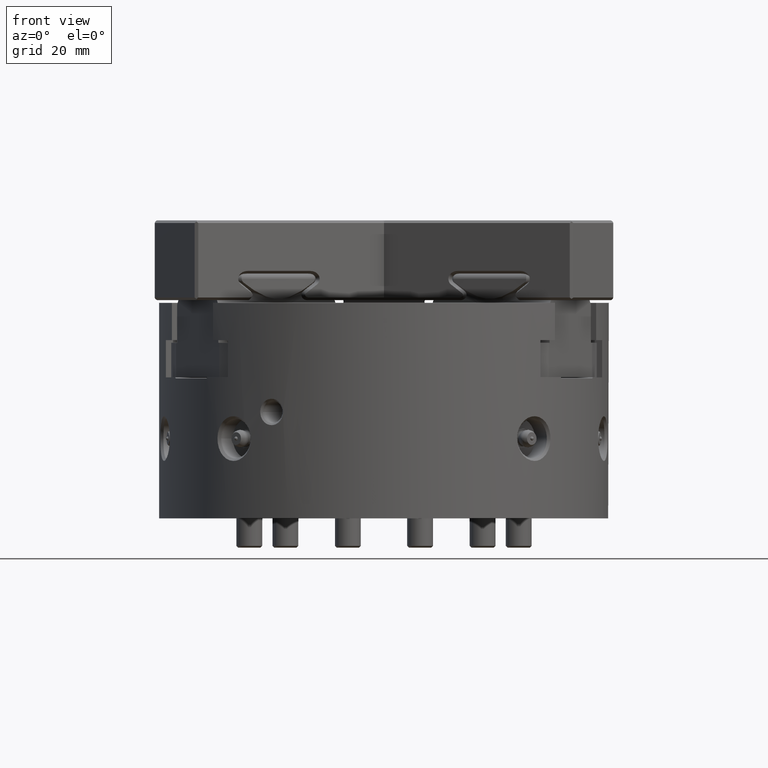
[diagram: clean part render]
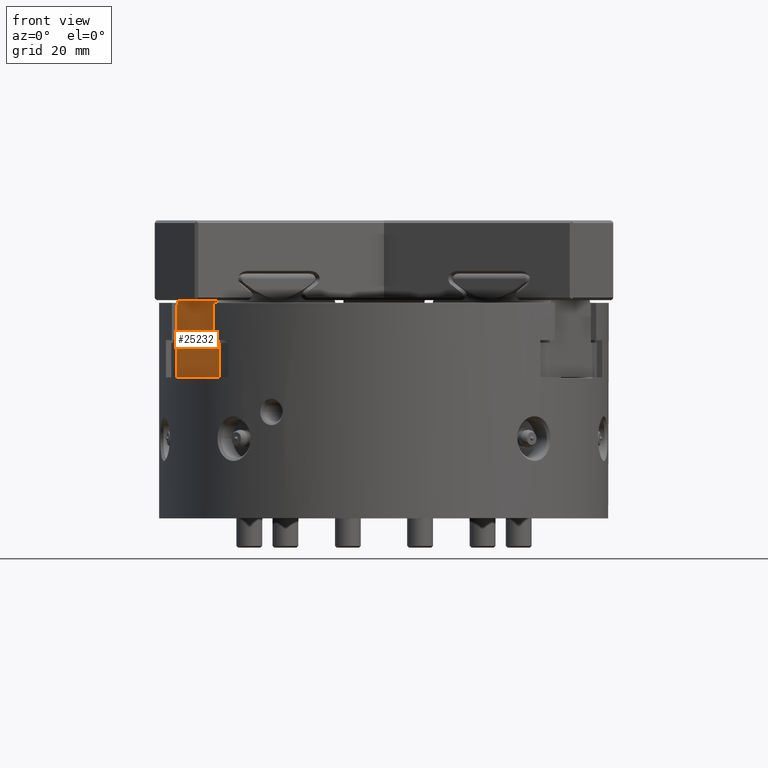
[diagram: same view with one face highlighted and labeled with its STEP entity id]
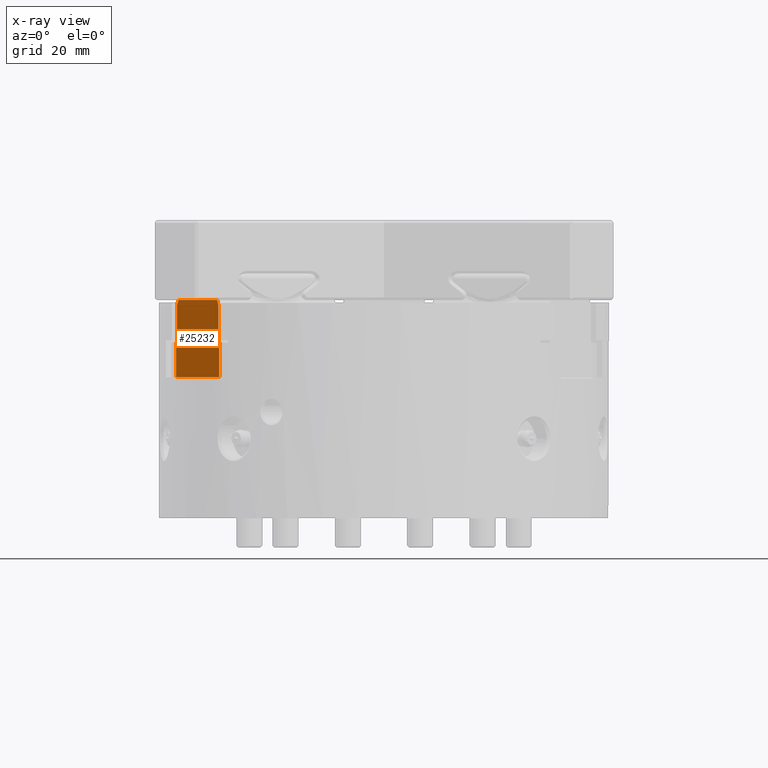
[diagram: x-ray of the same camera — body ghosted, the highlighted face saturated]
A machine part, front view. The second image highlights one B-rep face of the part: STEP entity #25232.
The next image is the same camera in x-ray: the body ghosted, the highlighted face saturated — about 0% of this face is hidden behind the body in this view.
In plain terms, the highlighted planar face has unit normal (0.866, 0.5, 0).
Its self-contained STEP definition (entity closure, byte-faithful):
#1493=LINE('',#35417,#3527);
#1508=LINE('',#35459,#3542);
#2102=LINE('',#40539,#4136);
#2104=LINE('',#40543,#4138);
#2160=LINE('',#41657,#4194);
#2771=LINE('',#45087,#4805);
#2773=LINE('',#45091,#4807);
#2779=LINE('',#45117,#4813);
#2784=LINE('',#45137,#4818);
#2785=LINE('',#45139,#4819);
#2789=LINE('',#45148,#4823);
#2801=LINE('',#45176,#4835);
#2807=LINE('',#45187,#4841);
#2819=LINE('',#45209,#4853);
#3527=VECTOR('',#28514,1000.);
#3542=VECTOR('',#28549,1000.);
#4136=VECTOR('',#29877,1000.);
#4138=VECTOR('',#29881,1000.);
#4194=VECTOR('',#30649,1000.);
#4805=VECTOR('',#32612,1000.);
#4807=VECTOR('',#32616,1000.);
#4813=VECTOR('',#32626,1000.);
#4818=VECTOR('',#32633,1000.);
#4819=VECTOR('',#32636,1000.);
#4823=VECTOR('',#32642,1000.);
#4835=VECTOR('',#32668,1000.);
#4841=VECTOR('',#32678,1000.);
#4853=VECTOR('',#32710,1000.);
#10236=ORIENTED_EDGE('',*,*,#15125,.F.);
#10237=ORIENTED_EDGE('',*,*,#15123,.F.);
#10238=ORIENTED_EDGE('',*,*,#13666,.F.);
#10239=ORIENTED_EDGE('',*,*,#15134,.F.);
#10240=ORIENTED_EDGE('',*,*,#15180,.F.);
#10241=ORIENTED_EDGE('',*,*,#15141,.F.);
#10242=ORIENTED_EDGE('',*,*,#13664,.F.);
#10243=ORIENTED_EDGE('',*,*,#15142,.F.);
#10244=ORIENTED_EDGE('',*,*,#15146,.F.);
#10245=ORIENTED_EDGE('',*,*,#15168,.F.);
#10246=ORIENTED_EDGE('',*,*,#12800,.T.);
#10247=ORIENTED_EDGE('',*,*,#14049,.T.);
#10248=ORIENTED_EDGE('',*,*,#12779,.T.);
#10249=ORIENTED_EDGE('',*,*,#15162,.T.);
#12779=EDGE_CURVE('',#16373,#16372,#1493,.T.);
#12800=EDGE_CURVE('',#16390,#16384,#1508,.T.);
#13664=EDGE_CURVE('',#17015,#17006,#2102,.T.);
#13666=EDGE_CURVE('',#17016,#17001,#2104,.T.);
#14049=EDGE_CURVE('',#16384,#16373,#2160,.T.);
#15123=EDGE_CURVE('',#17001,#17979,#2771,.T.);
#15125=EDGE_CURVE('',#17979,#17980,#2773,.T.);
#15134=EDGE_CURVE('',#17987,#17016,#2779,.T.);
#15141=EDGE_CURVE('',#17006,#17989,#2784,.T.);
#15142=EDGE_CURVE('',#17992,#17015,#2785,.T.);
#15146=EDGE_CURVE('',#17995,#17992,#2789,.T.);
#15162=EDGE_CURVE('',#16372,#17980,#2801,.T.);
#15168=EDGE_CURVE('',#16390,#17995,#2807,.T.);
#15180=EDGE_CURVE('',#17989,#17987,#2819,.T.);
#16372=VERTEX_POINT('',#35416);
#16373=VERTEX_POINT('',#35418);
#16384=VERTEX_POINT('',#35444);
#16390=VERTEX_POINT('',#35460);
#17001=VERTEX_POINT('',#40500);
#17006=VERTEX_POINT('',#40520);
#17015=VERTEX_POINT('',#40538);
#17016=VERTEX_POINT('',#40542);
#17979=VERTEX_POINT('',#45088);
#17980=VERTEX_POINT('',#45092);
#17987=VERTEX_POINT('',#45116);
#17989=VERTEX_POINT('',#45122);
#17992=VERTEX_POINT('',#45140);
#17995=VERTEX_POINT('',#45147);
#20742=EDGE_LOOP('',(#10236,#10237,#10238,#10239,#10240,#10241,#10242,#10243,
#10244,#10245,#10246,#10247,#10248,#10249));
#22672=FACE_BOUND('',#20742,.T.);
#24017=PLANE('',#27394);
#25232=ADVANCED_FACE('',(#22672),#24017,.F.);
#27394=AXIS2_PLACEMENT_3D('',#45208,#32708,#32709);
#28514=DIRECTION('',(0.5,-0.866025403784439,0.));
#28549=DIRECTION('',(0.5,-0.866025403784439,0.));
#29877=DIRECTION('',(0.,0.,1.));
#29881=DIRECTION('',(0.,0.,-1.));
#30649=DIRECTION('',(0.5,-0.866025403784439,0.));
#32612=DIRECTION('',(0.,0.,-1.));
#32616=DIRECTION('',(0.5,-0.866025403784439,-9.25185853854299E-16));
#32626=DIRECTION('',(0.25,-0.433012701892219,-0.866025403784439));
#32633=DIRECTION('',(0.25,-0.433012701892219,0.866025403784439));
#32636=DIRECTION('',(0.,0.,1.));
#32642=DIRECTION('',(0.5,-0.866025403784439,9.25185853854299E-16));
#32668=DIRECTION('',(0.,0.,1.));
#32678=DIRECTION('',(0.,0.,1.));
#32708=DIRECTION('',(0.866025403784439,0.5,0.));
#32709=DIRECTION('',(0.,0.,-1.));
#32710=DIRECTION('',(0.5,-0.866025403784439,0.));
#35416=CARTESIAN_POINT('',(-61.8985658792048,-54.4433023945545,-28.));
#35417=CARTESIAN_POINT('',(-90.2485658792048,-5.33966199997684,-28.));
#35418=CARTESIAN_POINT('',(-63.9985658792048,-50.8059956986599,-28.));
#35444=CARTESIAN_POINT('',(-75.9985658792047,-30.0213860078335,-28.));
#35459=CARTESIAN_POINT('',(-90.2485658792048,-5.33966199997684,-28.));
#35460=CARTESIAN_POINT('',(-78.0985658792048,-26.3840793119387,-28.));
#40500=CARTESIAN_POINT('',(-62.2485658792048,-53.8370846119054,-14.));
#40520=CARTESIAN_POINT('',(-77.7485658792047,-26.9902970945879,-0.732050807568711));
#40538=CARTESIAN_POINT('',(-77.7485658792047,-26.990297094588,-14.));
#40539=CARTESIAN_POINT('',(-77.7485658792048,-26.9902970945878,-28.));
#40542=CARTESIAN_POINT('',(-62.2485658792048,-53.8370846119054,-0.73205080756888));
#40543=CARTESIAN_POINT('',(-62.2485658792048,-53.8370846119054,-28.));
#41657=CARTESIAN_POINT('',(-90.2485658792048,-5.33966199997684,-28.));
#45087=CARTESIAN_POINT('',(-62.2485658792048,-53.8370846119054,-28.));
#45088=CARTESIAN_POINT('',(-62.2485658792048,-53.8370846119054,-15.));
#45091=CARTESIAN_POINT('',(-90.2485658792048,-5.33966199997684,-14.9999999999999));
#45092=CARTESIAN_POINT('',(-61.8985658792048,-54.4433023945545,-15.));
#45116=CARTESIAN_POINT('',(-62.7485658792048,-52.971059208121,1.));
#45117=CARTESIAN_POINT('',(-63.3448817017676,-51.938209906085,3.06569860407204));
#45122=CARTESIAN_POINT('',(-77.2485658792048,-27.8563224983723,1.));
#45137=CARTESIAN_POINT('',(-86.7772500566419,-11.3521573737735,-32.0083302491977));
#45139=CARTESIAN_POINT('',(-77.7485658792048,-26.9902970945878,-28.));
#45140=CARTESIAN_POINT('',(-77.7485658792048,-26.9902970945878,-15.));
#45147=CARTESIAN_POINT('',(-78.0985658792048,-26.3840793119387,-15.));
#45148=CARTESIAN_POINT('',(-90.2485658792048,-5.33966199997684,-15.));
#45176=CARTESIAN_POINT('',(-61.8985658792048,-54.4433023945545,-67.));
#45187=CARTESIAN_POINT('',(-78.0985658792048,-26.3840793119387,-67.));
#45208=CARTESIAN_POINT('',(-90.2485658792048,-5.33966199997684,-28.));
#45209=CARTESIAN_POINT('',(-90.2485658792048,-5.33966199997684,1.));